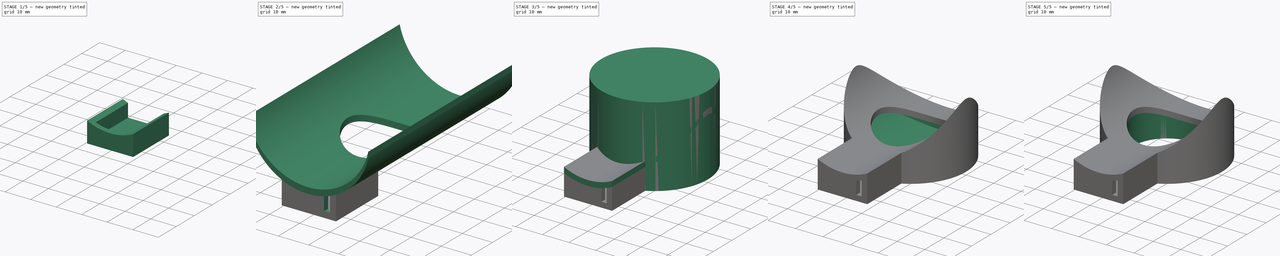
[diagram: build sequence overview — one tinted view per stage of 5, left to right]
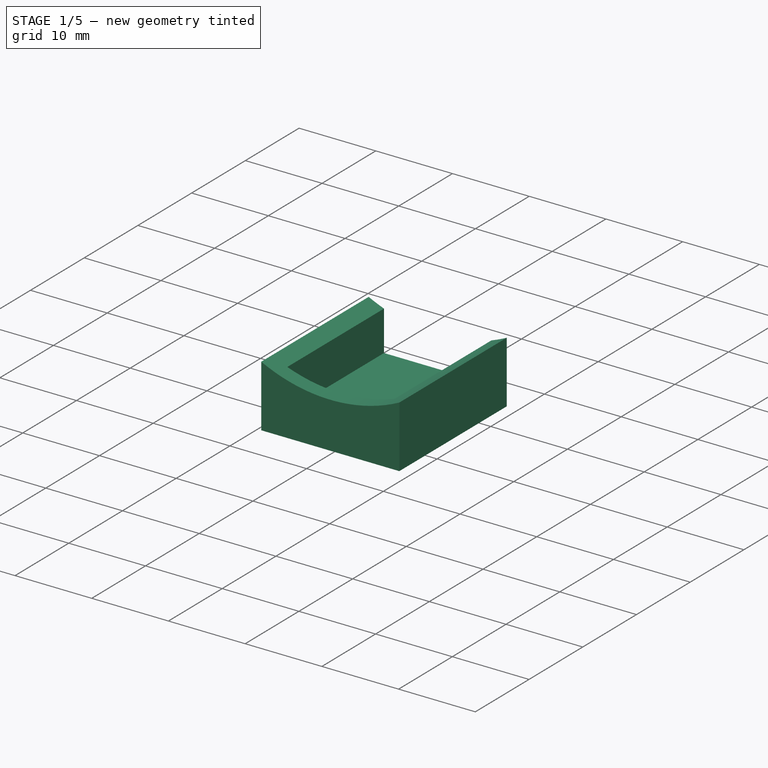
[diagram: stage 1 of 5 — iso view after this stage's code; geometry added in this stage tinted green]
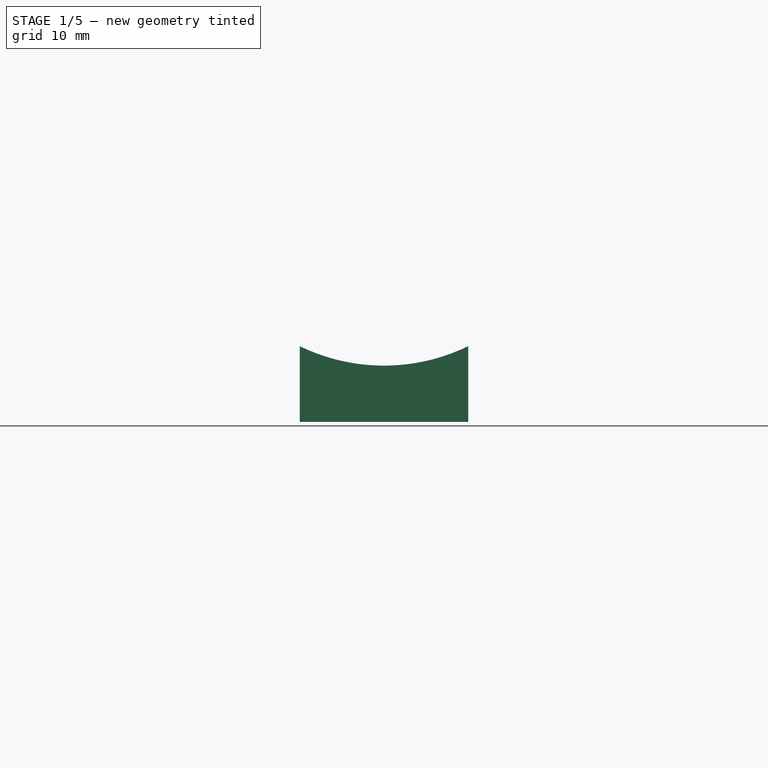
[diagram: stage 1 of 5 — front view after this stage's code; geometry added in this stage tinted green]
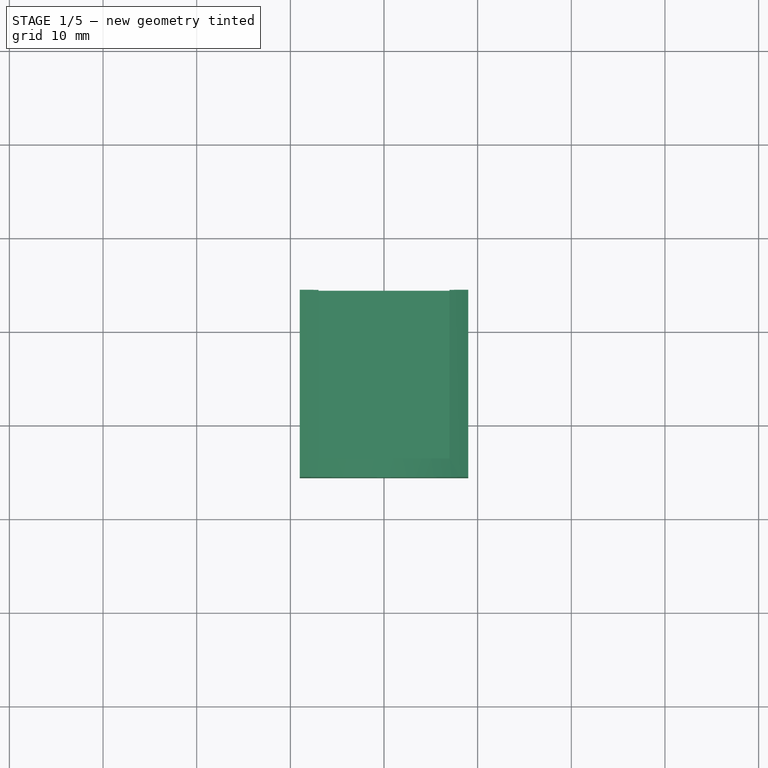
[diagram: stage 1 of 5 — top view after this stage's code; geometry added in this stage tinted green]
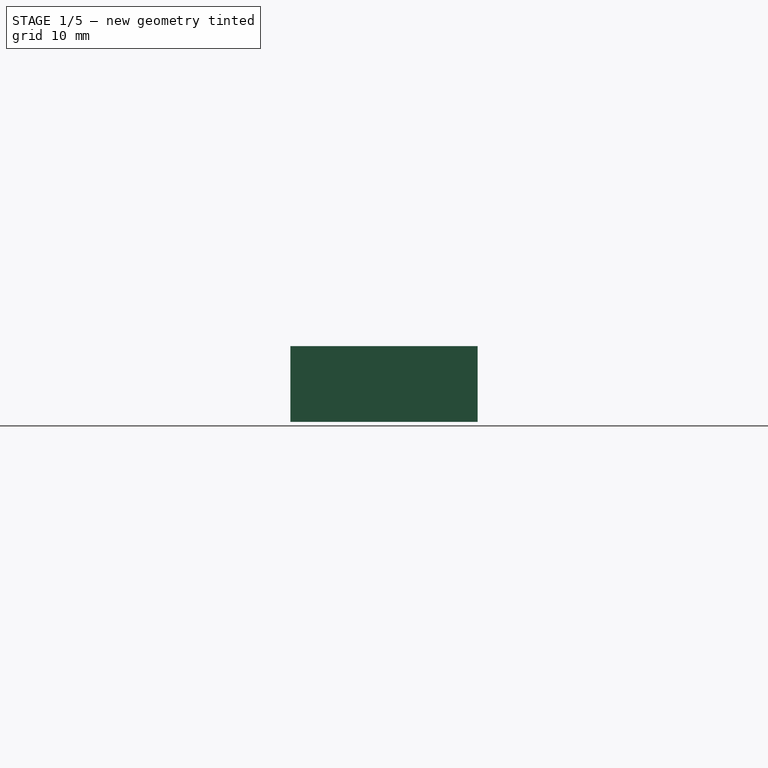
[diagram: stage 1 of 5 — right view after this stage's code; geometry added in this stage tinted green]
FCSTD DOCUMENT  (FreeCAD 0.21R33771 (Git))
Label: bruker7t_fus_single_coil_wrap_id24_both
License: All rights reserved
LicenseURL: http://en.wikipedia.org/wiki/All_rights_reserved
objects: Sketcher::SketchObject×22, PartDesign::Pocket×16, PartDesign::Pad×6, PartDesign::Body×5
note: 71 computed .brp shape members not serialized (recipe doc carries the construction recipe); baked Part::Feature solids carry a one-line shape summary decoded from their .brp

FEATURE [PartDesign::Body] Body001  label="base_cylinder_intermediate"
  Group = -> [Sketch003,Pad001,Sketch004,Pocket002,Sketch008,Pocket005]
  Origin = -> Origin001
  Tip = -> Pocket005
FEATURE [Sketcher::SketchObject] Sketch009
  FullyConstrained = true
  MapMode = 5
  Support = -> [XY_Plane003]
  sketch-geometry (4):
    g0: LineSegment StartX=-9 StartY=-15.5885 StartZ=0 EndX=9 EndY=-15.5885 EndZ=0
    g1: LineSegment StartX=9 StartY=-15.5885 StartZ=0 EndX=9 EndY=-35.5885 EndZ=0
    g2: LineSegment StartX=9 StartY=-35.5885 StartZ=0 EndX=-9 EndY=-35.5885 EndZ=0
    g3: LineSegment StartX=-9 StartY=-35.5885 StartZ=0 EndX=-9 EndY=-15.5885 EndZ=0
  constraints (11):
    c: Coincident(g0,g1)
    c: Coincident(g1,g2)
    c: Coincident(g2,g3)
    c: Coincident(g3,g0)
    c: Horizontal(g2)
    c: Vertical(g1)
    c: Vertical(g3)
    c: DistanceY(g1,g1) = 20
    c: DistanceX(g0,g0) = 18
    c: Symmetric(g0,g0,g-2)
    c: Distance(g-1,g0) = 18
FEATURE [PartDesign::Pad] Pad003
  Direction = (0,0,1)
  Length = 9
  Length2 = 10
  Profile = -> Sketch009
  ReferenceAxis = -> Sketch009 [N_Axis]
  Refine = true
  Type = 0
FEATURE [Sketcher::SketchObject] Sketch010
  AttachmentOffset = pos=(0,0,2) rot=(0,0,1;0rad)
  FullyConstrained = true
  MapMode = 5
  Placement = pos=(0,0,2) rot=(0,0,1;0rad)
  Support = -> [XY_Plane003]
  sketch-geometry (4):
    g0: LineSegment StartX=-7 StartY=-16.5831 StartZ=0 EndX=7 EndY=-16.5831 EndZ=0
    g1: LineSegment StartX=7 StartY=-16.5831 StartZ=0 EndX=7 EndY=-33.5831 EndZ=0
    g2: LineSegment StartX=7 StartY=-33.5831 StartZ=0 EndX=-7 EndY=-33.5831 EndZ=0
    g3: LineSegment StartX=-7 StartY=-33.5831 StartZ=0 EndX=-7 EndY=-16.5831 EndZ=0
  constraints (11):
    c: Coincident(g0,g1)
    c: Coincident(g1,g2)
    c: Coincident(g2,g3)
    c: Coincident(g3,g0)
    c: Horizontal(g0)
    c: Vertical(g1)
    c: Vertical(g3)
    c: Symmetric(g1,g2,g-2)
    c: DistanceX(g0,g0) = 14
    c: DistanceY(g1,g1) = 17
    c: Distance(g-1,g0) = 18
FEATURE [PartDesign::Pocket] Pocket006
  BaseFeature = -> Pad003
  Direction = (0,0,-1)
  Length = 7
  Length2 = 5
  Profile = -> Sketch010
  ReferenceAxis = -> Sketch010 [N_Axis]
  Refine = true
  Reversed = true
  Type = 0
FEATURE [Sketcher::SketchObject] Sketch011
  AttachmentOffset = pos=(0,0,15) rot=(0,0,1;0rad)
  FullyConstrained = true
  MapMode = 5
  Placement = pos=(0,-15,-3.3e-15) rot=(1,0,0;1.5708rad)
  Support = -> [XZ_Plane003]
  sketch-geometry (4):
    g0: LineSegment StartX=-20 StartY=22 StartZ=0 EndX=-20 EndY=32 EndZ=0
    g1: LineSegment StartX=-20 StartY=32 StartZ=0 EndX=20 EndY=32 EndZ=0
    g2: LineSegment StartX=20 StartY=32 StartZ=0 EndX=20 EndY=22 EndZ=0
    g3: ArcOfCircle CenterX=-7.93e-14 CenterY=26.5 CenterZ=0 NormalX=0 NormalY=0 NormalZ=1 AngleXU=0 Radius=20.5 StartAngle=3.36291 EndAngle=6.06187
  constraints (12):
    c: Vertical(g0)
    c: Coincident(g0,g1)
    c: Coincident(g1,g2)
    c: Vertical(g2)
    c: DistanceY(g-1,g1) = 32
    c: Symmetric(g1,g0,g-2)
    c: DistanceX(g1,g1) = 40
    c: Coincident(g3,g0)
    c: Coincident(g3,g2)
    c: Equal(g2,g0)
    c: DistanceY(g-1,g2) = 22
    c: Radius(g3) = 20.5
FEATURE [PartDesign::Pocket] Pocket007
  BaseFeature = -> Pocket006
  Direction = (0,1,-2e-16)
  Length = 21
  Length2 = 5
  Profile = -> Sketch011
  ReferenceAxis = -> Sketch011 [N_Axis]
  Refine = true
  Reversed = true
  Type = 0
FEATURE [Sketcher::SketchObject] Sketch012
  AttachmentOffset = pos=(0,0,33) rot=(0,0,1;0rad)
  FullyConstrained = false
  MapMode = 5
  Placement = pos=(0,-33,-7.3e-15) rot=(1,0,0;1.5708rad)
  Support = -> [XZ_Plane003]
  sketch-geometry (4):
    g0: LineSegment StartX=-7 StartY=9.42455 StartZ=0 EndX=7 EndY=9.42455 EndZ=0
    g1: LineSegment StartX=7 StartY=9.42455 StartZ=0 EndX=7 EndY=2 EndZ=0
    g2: LineSegment StartX=7 StartY=2 StartZ=0 EndX=-7 EndY=2 EndZ=0
    g3: LineSegment StartX=-7 StartY=2 StartZ=0 EndX=-7 EndY=9.42455 EndZ=0
  constraints (10):
    c: Coincident(g0,g1)
    c: Coincident(g1,g2)
    c: Coincident(g2,g3)
    c: Coincident(g3,g0)
    c: Horizontal(g2)
    c: Vertical(g1)
    c: Vertical(g3)
    c: Symmetric(g0,g0,g-2)
    c: DistanceX(g0,g0) = 14
    c: DistanceY(g-1,g1) = 2
FEATURE [PartDesign::Pocket] Pocket008
  BaseFeature = -> Pocket007
  Direction = (0,1,-2e-16)
  Length = 25
  Length2 = 5
  Profile = -> Sketch012
  ReferenceAxis = -> Sketch012 [N_Axis]
  Refine = true
  Type = 0
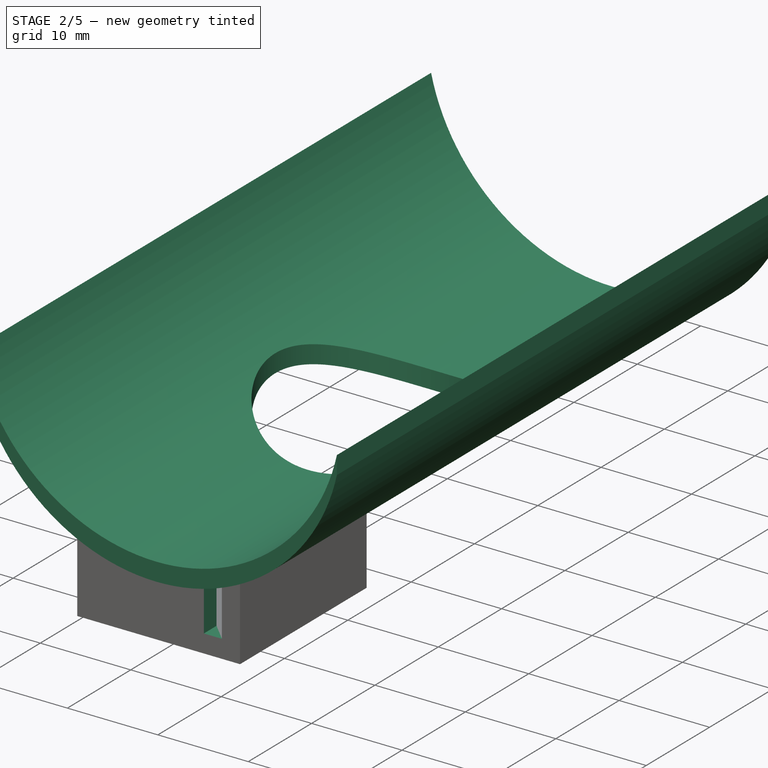
[diagram: stage 2 of 5 — iso view after this stage's code; geometry added in this stage tinted green]
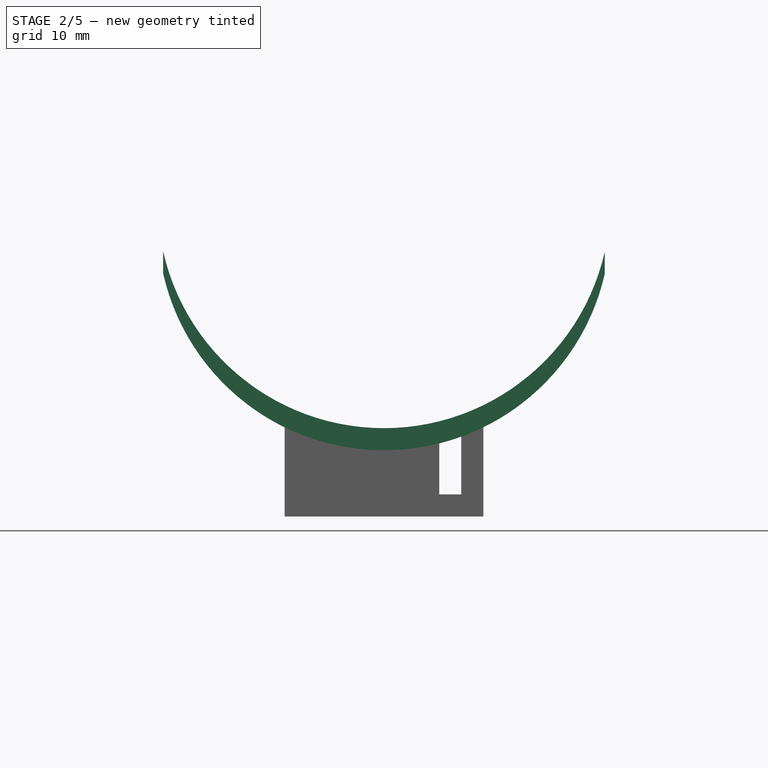
[diagram: stage 2 of 5 — front view after this stage's code; geometry added in this stage tinted green]
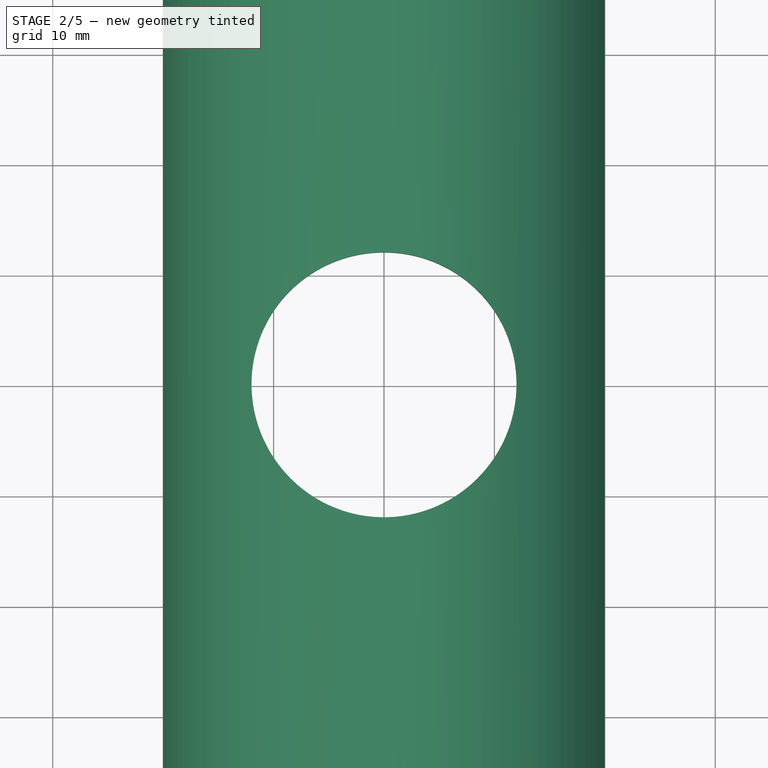
[diagram: stage 2 of 5 — top view after this stage's code; geometry added in this stage tinted green]
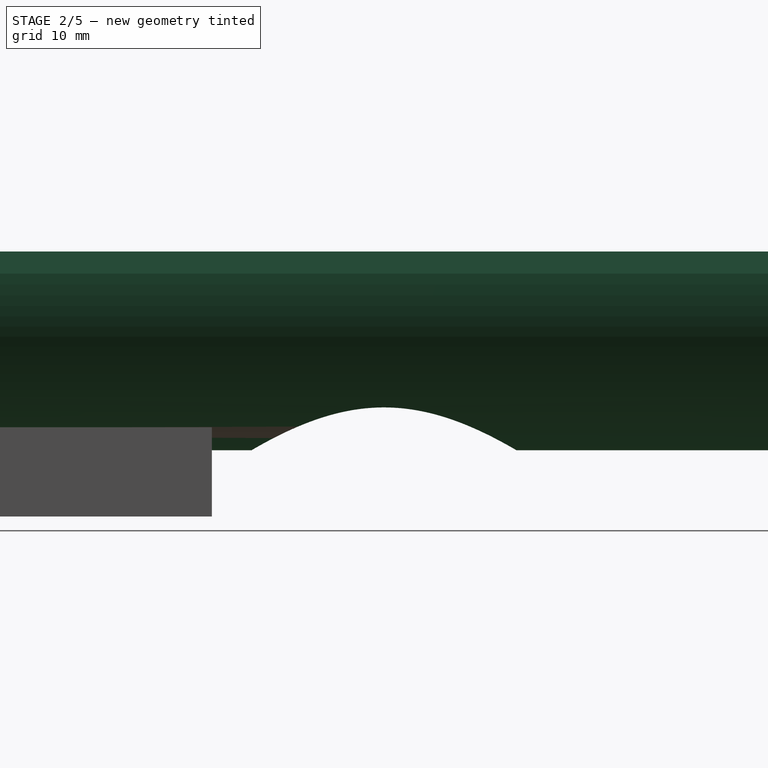
[diagram: stage 2 of 5 — right view after this stage's code; geometry added in this stage tinted green]
FEATURE [Sketcher::SketchObject] Sketch013
  AttachmentOffset = pos=(0,0,9) rot=(0,0,1;0rad)
  FullyConstrained = true
  MapMode = 5
  Placement = pos=(0,0,9) rot=(0,0,1;0rad)
  Support = -> [XY_Plane003]
  sketch-geometry (1):
    g0: Circle CenterX=0 CenterY=0 CenterZ=0 NormalX=0 NormalY=0 NormalZ=1 AngleXU=0 Radius=18
  constraints (2):
    c: Coincident(g0,g-1)
    c: Radius(g0) = 18
FEATURE [PartDesign::Pocket] Pocket009
  BaseFeature = -> Pocket008
  Direction = (0,0,-1)
  Length = 7
  Length2 = 5
  Profile = -> Sketch013
  ReferenceAxis = -> Sketch013 [N_Axis]
  Refine = true
  Type = 0
FEATURE [PartDesign::Body] Body  label="base_cylinder_external"
  Group = -> [Sketch,Pad,Sketch001,Pocket,Sketch002,Pocket001,Sketch014,Pocket010]
  Origin = -> Origin
  Tip = -> Pocket010
FEATURE [Sketcher::SketchObject] Sketch015
  FullyConstrained = true
  MapMode = 5
  Placement = pos=(0,0,0) rot=(1,0,0;1.5708rad)
  Support = -> [XZ_Plane004]
  sketch-geometry (4):
    g0: LineSegment StartX=-20 StartY=22 StartZ=0 EndX=-20 EndY=32 EndZ=0
    g1: LineSegment StartX=-20 StartY=32 StartZ=0 EndX=20 EndY=32 EndZ=0
    g2: LineSegment StartX=20 StartY=32 StartZ=0 EndX=20 EndY=22 EndZ=0
    g3: ArcOfCircle CenterX=-7.95e-14 CenterY=26.5 CenterZ=0 NormalX=0 NormalY=0 NormalZ=1 AngleXU=0 Radius=20.5 StartAngle=3.36291 EndAngle=6.06187
  constraints (12):
    c: Vertical(g0)
    c: Coincident(g0,g1)
    c: Coincident(g1,g2)
    c: Vertical(g2)
    c: DistanceY(g-1,g1) = 32
    c: Symmetric(g1,g0,g-2)
    c: DistanceX(g1,g1) = 40
    c: Coincident(g3,g0)
    c: Coincident(g3,g2)
    c: Equal(g0,g2)
    c: DistanceY(g-1,g2) = 22
    c: Radius(g3) = 20.5
FEATURE [PartDesign::Pad] Pad004
  Direction = (0,-1,2e-16)
  Length = 72
  Length2 = 10
  Midplane = true
  Placement = pos=(0,0,0) rot=(1,0,0;1.5708rad)
  Profile = -> Sketch015
  ReferenceAxis = -> Sketch015 [N_Axis]
  Refine = true
  Type = 0
FEATURE [Sketcher::SketchObject] Sketch016
  FullyConstrained = true
  MapMode = 5
  Placement = pos=(0,0,0) rot=(1,0,0;1.5708rad)
  Support = -> [XZ_Plane004]
  sketch-geometry (4):
    g0: LineSegment StartX=-20 StartY=24 StartZ=0 EndX=-20 EndY=34 EndZ=0
    g1: LineSegment StartX=-20 StartY=34 StartZ=0 EndX=20 EndY=34 EndZ=0
    g2: LineSegment StartX=20 StartY=34 StartZ=0 EndX=20 EndY=24 EndZ=0
    g3: ArcOfCircle CenterX=1.067e-13 CenterY=28.5 CenterZ=0 NormalX=0 NormalY=0 NormalZ=1 AngleXU=0 Radius=20.5 StartAngle=3.36291 EndAngle=6.06187
  constraints (12):
    c: Vertical(g0)
    c: Coincident(g0,g1)
    c: Coincident(g1,g2)
    c: Vertical(g2)
    c: DistanceY(g-1,g1) = 34
    c: Symmetric(g1,g0,g-2)
    c: DistanceX(g1,g1) = 40
    c: Coincident(g3,g0)
    c: Coincident(g3,g2)
    c: Equal(g0,g2)
    c: DistanceY(g-1,g2) = 24
    c: Radius(g3) = 20.5
FEATURE [PartDesign::Pocket] Pocket011
  BaseFeature = -> Pad004
  Direction = (0,1,-2e-16)
  Length = 72
  Length2 = 5
  Midplane = true
  Placement = pos=(0,0,0) rot=(1,0,0;1.5708rad)
  Profile = -> Sketch016
  ReferenceAxis = -> Sketch016 [N_Axis]
  Refine = true
  Type = 0
FEATURE [Sketcher::SketchObject] Sketch017
  FullyConstrained = true
  MapMode = 5
  Support = -> [XY_Plane004]
  sketch-geometry (1):
    g0: Circle CenterX=0 CenterY=0 CenterZ=0 NormalX=0 NormalY=0 NormalZ=1 AngleXU=0 Radius=12
  constraints (2):
    c: Coincident(g0,g-1)
    c: Radius(g0) = 12
FEATURE [PartDesign::Pocket] Pocket012
  BaseFeature = -> Pocket011
  Direction = (0,0,-1)
  Length = 5
  Length2 = 5
  Placement = pos=(0,0,0) rot=(1,0,0;1.5708rad)
  Profile = -> Sketch017
  ReferenceAxis = -> Sketch017 [N_Axis]
  Refine = true
  Reversed = true
  Type = 1
FEATURE [PartDesign::Body] Body004  label="top"
  Group = -> [Sketch015,Pad004,Sketch016,Pocket011,Sketch017,Pocket012,Sketch018,Pocket013,Sketch019,Pocket014,Sketch020,Pad005]
  Origin = -> Origin004
  Tip = -> Pad005
FEATURE [Sketcher::SketchObject] Sketch021
  AttachmentOffset = pos=(0,0,37) rot=(0,0,1;0rad)
  FullyConstrained = true
  MapMode = 5
  Placement = pos=(0,-37,-8.2e-15) rot=(1,0,0;1.5708rad)
  Support = -> [XZ_Plane003]
  sketch-geometry (4):
    g0: LineSegment StartX=5 StartY=10 StartZ=0 EndX=7 EndY=10 EndZ=0
    g1: LineSegment StartX=7 StartY=10 StartZ=0 EndX=7 EndY=2 EndZ=0
    g2: LineSegment StartX=7 StartY=2 StartZ=0 EndX=5 EndY=2 EndZ=0
    g3: LineSegment StartX=5 StartY=2 StartZ=0 EndX=5 EndY=10 EndZ=0
  constraints (12):
    c: Coincident(g0,g1)
    c: Coincident(g1,g2)
    c: Coincident(g2,g3)
    c: Coincident(g3,g0)
    c: Horizontal(g0)
    c: Horizontal(g2)
    c: Vertical(g1)
    c: Vertical(g3)
    c: DistanceX(g2,g2) = 2
    c: DistanceY(g-1,g2) = 2
    c: DistanceX(g-1,g1) = 7
    c: DistanceY(g1,g1) = 8
FEATURE [PartDesign::Pocket] Pocket015
  BaseFeature = -> Pocket009
  Direction = (0,1,-2e-16)
  Length = 5
  Length2 = 5
  Profile = -> Sketch021
  ReferenceAxis = -> Sketch021 [N_Axis]
  Refine = true
  Type = 0
FEATURE [PartDesign::Body] Body003  label="base_box"
  Group = -> [Sketch009,Pad003,Sketch010,Pocket006,Sketch011,Pocket007,Sketch012,Pocket008,Sketch013,Pocket009,Sketch021,Pocket015]
  Origin = -> Origin003
  Tip = -> Pocket015
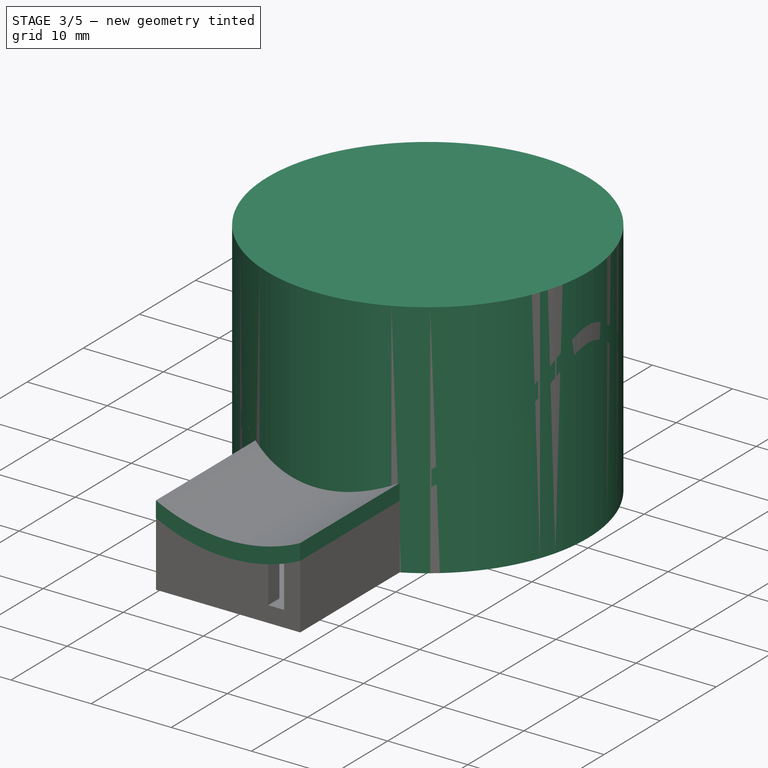
[diagram: stage 3 of 5 — iso view after this stage's code; geometry added in this stage tinted green]
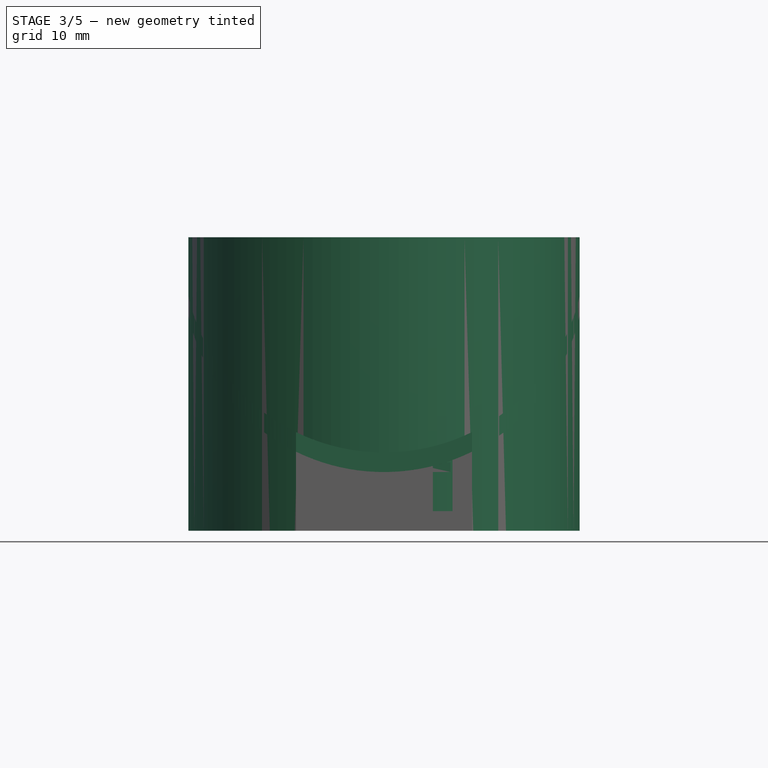
[diagram: stage 3 of 5 — front view after this stage's code; geometry added in this stage tinted green]
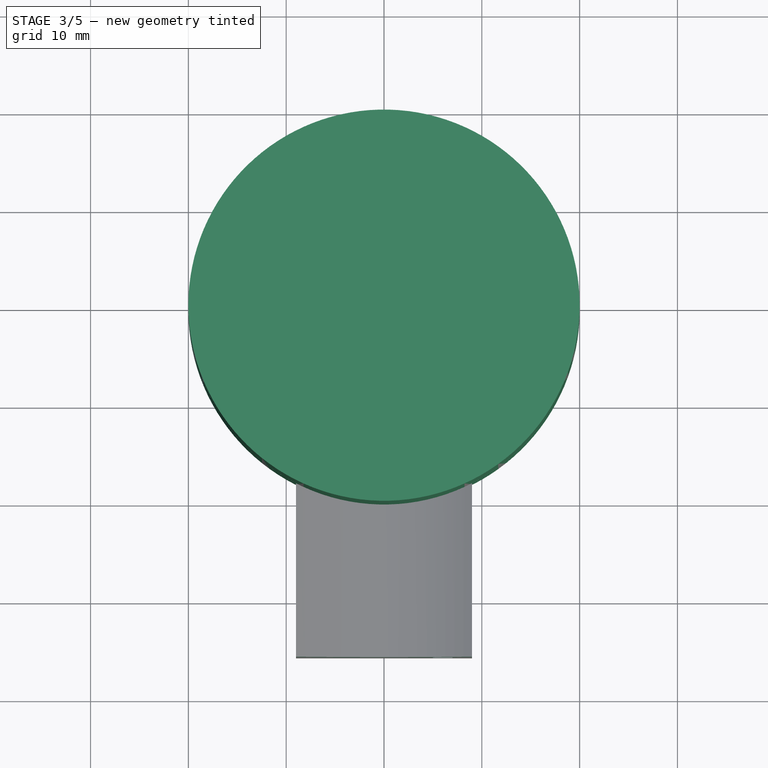
[diagram: stage 3 of 5 — top view after this stage's code; geometry added in this stage tinted green]
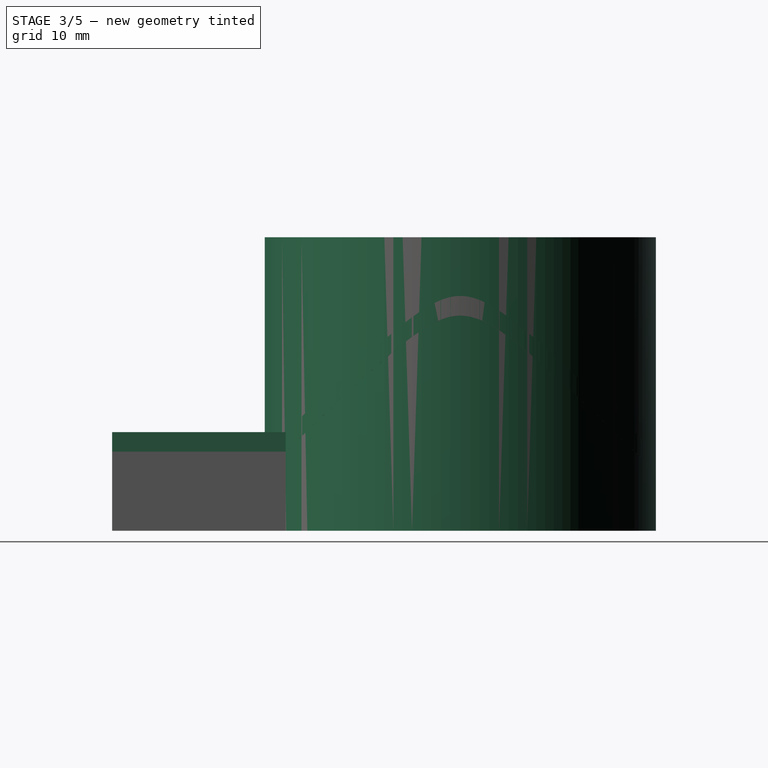
[diagram: stage 3 of 5 — right view after this stage's code; geometry added in this stage tinted green]
FEATURE [Sketcher::SketchObject] Sketch
  FullyConstrained = true
  MapMode = 5
  Support = -> [XY_Plane]
  sketch-geometry (1):
    g0: Circle CenterX=0 CenterY=0 CenterZ=0 NormalX=0 NormalY=0 NormalZ=1 AngleXU=0 Radius=20
  constraints (2):
    c: Coincident(g0,g-1)
    c: Radius(g0) = 20
FEATURE [PartDesign::Pad] Pad
  Direction = (0,0,1)
  Length = 30
  Length2 = 10
  Profile = -> Sketch
  ReferenceAxis = -> Sketch [N_Axis]
  Refine = true
  Type = 0
FEATURE [Sketcher::SketchObject] Sketch018
  FullyConstrained = false
  MapMode = 5
  Support = -> [XY_Plane004]
  sketch-geometry (8):
    g0: LineSegment StartX=9 StartY=-38.9552 StartZ=0 EndX=9 EndY=-17.8606 EndZ=0
    g1: LineSegment StartX=-9 StartY=-38.9552 StartZ=0 EndX=-9 EndY=-17.8606 EndZ=0
    g2: ArcOfCircle CenterX=0 CenterY=0 CenterZ=0 NormalX=0 NormalY=0 NormalZ=1 AngleXU=0 Radius=20 StartAngle=5.17915 EndAngle=10.5288
    g3: LineSegment StartX=-9 StartY=-38.9552 StartZ=0 EndX=-27 EndY=-38.9552 EndZ=0
    g4: LineSegment StartX=-27 StartY=-38.9552 StartZ=0 EndX=-27 EndY=41.0448 EndZ=0
    g5: LineSegment StartX=-27 StartY=41.0448 StartZ=0 EndX=27 EndY=41.0448 EndZ=0
    g6: LineSegment StartX=27 StartY=41.0448 StartZ=0 EndX=27 EndY=-38.9552 EndZ=0
    g7: LineSegment StartX=27 StartY=-38.9552 StartZ=0 EndX=9 EndY=-38.9552 EndZ=0
  constraints (22):
    c: Vertical(g0)
    c: Horizontal(g3)
    c: Coincident(g3,g4)
    c: Vertical(g4)
    c: Coincident(g4,g5)
    c: Horizontal(g5)
    c: Coincident(g5,g6)
    c: Vertical(g6)
    c: Coincident(g6,g7)
    c: Horizontal(g7)
    c: Coincident(g0,g7)
    c: Coincident(g1,g3)
    c: Vertical(g1)
    c: Coincident(g2,g-1)
    c: Coincident(g0,g2)
    c: Coincident(g2,g1)
    c: Radius(g2) = 20
    c: Symmetric(g6,g3,g-2)
    c: DistanceX(g1,g0) = 18
    c: Horizontal(g0,g1)
    c: DistanceX(g7,g7) = 18
    c: DistanceY(g6,g6) = 80
FEATURE [PartDesign::Pocket] Pocket013
  BaseFeature = -> Pocket012
  Direction = (0,0,-1)
  Length = 25
  Length2 = 5
  Placement = pos=(0,0,0) rot=(1,0,0;1.5708rad)
  Profile = -> Sketch018
  ReferenceAxis = -> Sketch018 [N_Axis]
  Refine = true
  Reversed = true
  Type = 0
FEATURE [Sketcher::SketchObject] Sketch019
  FullyConstrained = true
  MapMode = 5
  Support = -> [XY_Plane004]
  sketch-geometry (4):
    g0: LineSegment StartX=-10 StartY=-35.6 StartZ=0 EndX=10 EndY=-35.6 EndZ=0
    g1: LineSegment StartX=10 StartY=-35.6 StartZ=0 EndX=10 EndY=-40.6 EndZ=0
    g2: LineSegment StartX=10 StartY=-40.6 StartZ=0 EndX=-10 EndY=-40.6 EndZ=0
    g3: LineSegment StartX=-10 StartY=-40.6 StartZ=0 EndX=-10 EndY=-35.6 EndZ=0
  constraints (11):
    c: Coincident(g0,g1)
    c: Coincident(g1,g2)
    c: Coincident(g2,g3)
    c: Coincident(g3,g0)
    c: Horizontal(g2)
    c: Vertical(g1)
    c: Vertical(g3)
    c: Symmetric(g0,g0,g-2)
    c: DistanceX(g2,g2) = 20
    c: DistanceY(g0,g-1) = 35.6
    c: DistanceY(g3,g3) = 5
FEATURE [PartDesign::Pocket] Pocket014
  BaseFeature = -> Pocket013
  Direction = (0,0,-1)
  Length = 15
  Length2 = 5
  Placement = pos=(0,0,0) rot=(1,0,0;1.5708rad)
  Profile = -> Sketch019
  ReferenceAxis = -> Sketch019 [N_Axis]
  Refine = true
  Reversed = true
  Type = 0
FEATURE [Sketcher::SketchObject] Sketch020
  AttachmentOffset = pos=(0,0,7) rot=(0,0,1;0rad)
  FullyConstrained = false
  MapMode = 5
  Placement = pos=(0,0,7) rot=(0,0,1;0rad)
  Support = -> [XY_Plane004]
  sketch-geometry (8):
    g0: LineSegment StartX=-6.8 StartY=-20.9757 StartZ=0 EndX=-6.8 EndY=-33.5 EndZ=0
    g1: LineSegment StartX=-6.8 StartY=-33.5 StartZ=0 EndX=6.8 EndY=-33.5 EndZ=0
    g2: LineSegment StartX=6.8 StartY=-33.5 StartZ=0 EndX=6.8 EndY=-20.9757 EndZ=0
    g3: LineSegment StartX=6.8 StartY=-20.9757 StartZ=0 EndX=5.8 EndY=-20.9757 EndZ=0
    g4: LineSegment StartX=5.8 StartY=-20.9757 StartZ=0 EndX=5.8 EndY=-32.5 EndZ=0
    g5: LineSegment StartX=5.8 StartY=-32.5 StartZ=0 EndX=-5.8 EndY=-32.5 EndZ=0
    g6: LineSegment StartX=-5.8 StartY=-32.5 StartZ=0 EndX=-5.8 EndY=-20.9757 EndZ=0
    g7: LineSegment StartX=-5.8 StartY=-20.9757 StartZ=0 EndX=-6.8 EndY=-20.9757 EndZ=0
  constraints (22):
    c: Vertical(g0)
    c: Coincident(g0,g1)
    c: Horizontal(g1)
    c: Coincident(g1,g2)
    c: Vertical(g2)
    c: Coincident(g2,g3)
    c: Coincident(g3,g4)
    c: Vertical(g4)
    c: Coincident(g4,g5)
    c: Horizontal(g5)
    c: Coincident(g5,g6)
    c: Vertical(g6)
    c: Coincident(g6,g7)
    c: Coincident(g7,g0)
    c: Horizontal(g3)
    c: Horizontal(g7)
    c: DistanceX(g7,g7) = 1
    c: DistanceX(g3,g3) = 1
    c: DistanceY(g0,g5) = 1
    c: Symmetric(g3,g6,g-2)
    c: DistanceX(g6,g-1) = 5.8
    c: DistanceY(g4,g-1) = 32.5
FEATURE [PartDesign::Pad] Pad005
  BaseFeature = -> Pocket014
  Direction = (0,0,1)
  Length = 1
  Length2 = 10
  Placement = pos=(0,0,0) rot=(1,0,0;1.5708rad)
  Profile = -> Sketch020
  ReferenceAxis = -> Sketch020 [N_Axis]
  Refine = true
  Reversed = true
  Type = 0
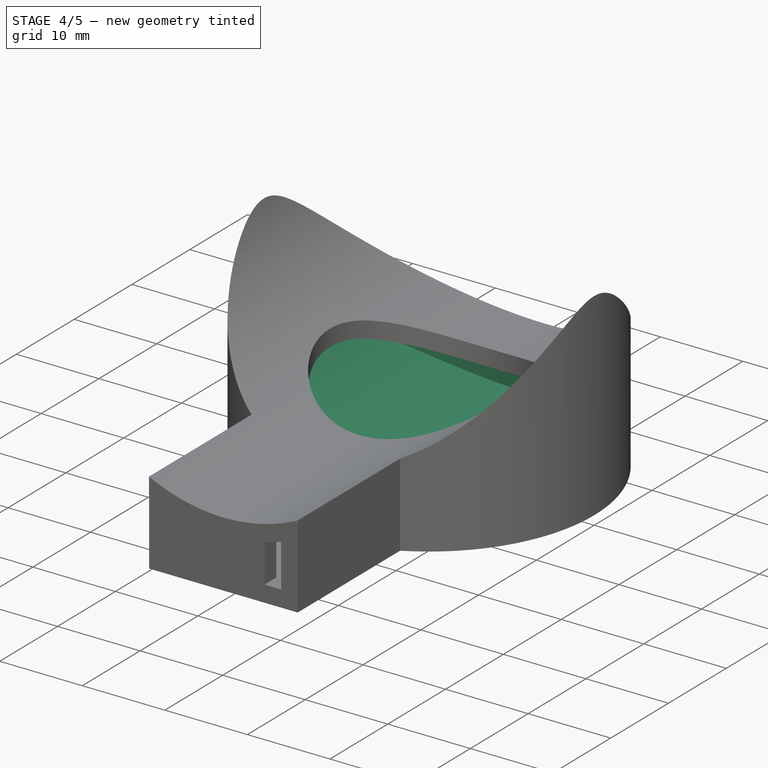
[diagram: stage 4 of 5 — iso view after this stage's code; geometry added in this stage tinted green]
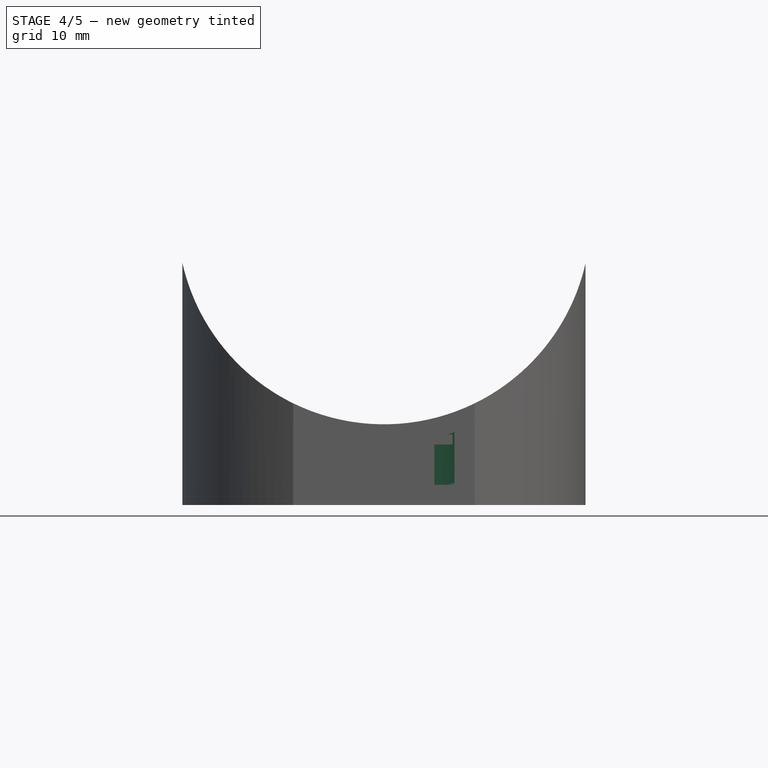
[diagram: stage 4 of 5 — front view after this stage's code; geometry added in this stage tinted green]
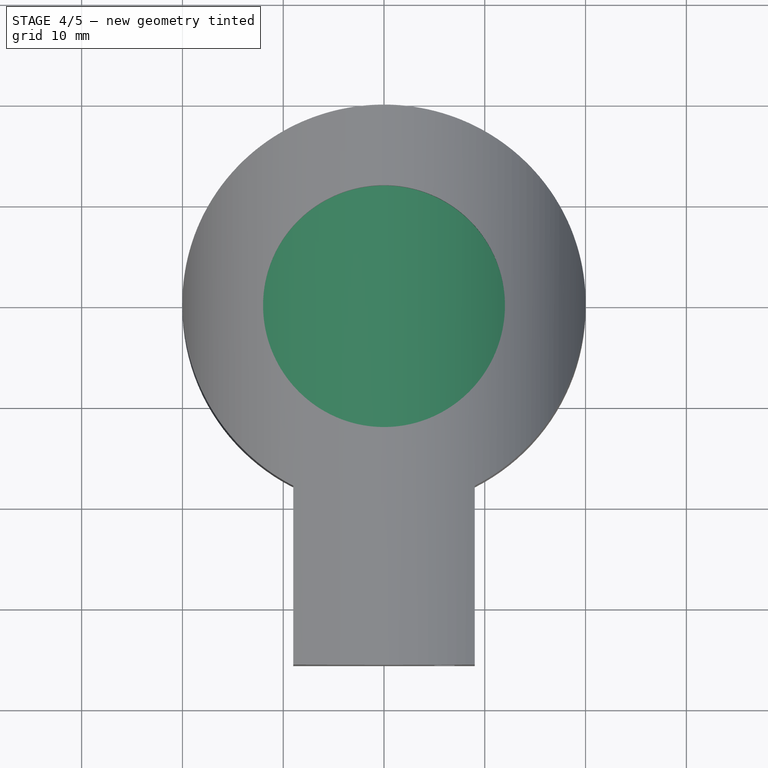
[diagram: stage 4 of 5 — top view after this stage's code; geometry added in this stage tinted green]
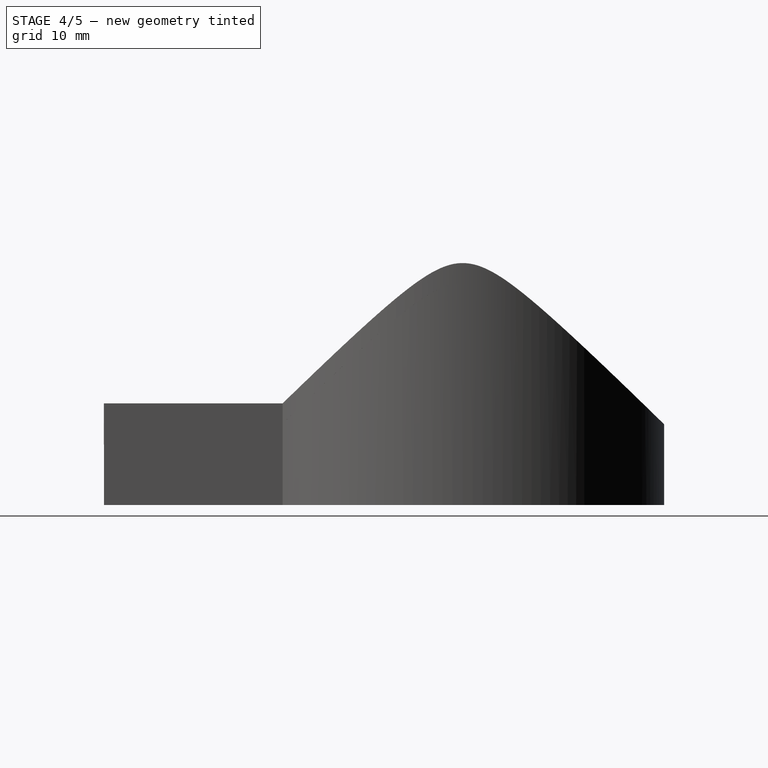
[diagram: stage 4 of 5 — right view after this stage's code; geometry added in this stage tinted green]
FEATURE [Sketcher::SketchObject] Sketch001
  FullyConstrained = true
  MapMode = 5
  Support = -> [XY_Plane]
  sketch-geometry (1):
    g0: Circle CenterX=0 CenterY=0 CenterZ=0 NormalX=0 NormalY=0 NormalZ=1 AngleXU=0 Radius=18
  constraints (2):
    c: Coincident(g0,g-1)
    c: Radius(g0) = 18
FEATURE [PartDesign::Pocket] Pocket
  BaseFeature = -> Pad
  Direction = (0,0,-1)
  Length = 40
  Length2 = 5
  Profile = -> Sketch001
  ReferenceAxis = -> Sketch001 [N_Axis]
  Refine = true
  Reversed = true
  Type = 0
FEATURE [Sketcher::SketchObject] Sketch002
  FullyConstrained = true
  MapMode = 5
  Placement = pos=(0,0,0) rot=(1,0,0;1.5708rad)
  Support = -> [XZ_Plane]
  sketch-geometry (4):
    g0: LineSegment StartX=-20 StartY=22 StartZ=0 EndX=-20 EndY=32 EndZ=0
    g1: LineSegment StartX=-20 StartY=32 StartZ=0 EndX=20 EndY=32 EndZ=0
    g2: LineSegment StartX=20 StartY=32 StartZ=0 EndX=20 EndY=22 EndZ=0
    g3: ArcOfCircle CenterX=-7.95e-14 CenterY=26.5 CenterZ=0 NormalX=0 NormalY=0 NormalZ=1 AngleXU=0 Radius=20.5 StartAngle=3.36291 EndAngle=6.06187
  constraints (12):
    c: Vertical(g0)
    c: Coincident(g0,g1)
    c: Coincident(g1,g2)
    c: Vertical(g2)
    c: DistanceY(g-1,g1) = 32
    c: Symmetric(g1,g0,g-2)
    c: DistanceX(g1,g1) = 40
    c: Coincident(g3,g0)
    c: Coincident(g3,g2)
    c: Equal(g0,g2)
    c: DistanceY(g-1,g2) = 22
    c: Radius(g3) = 20.5
FEATURE [PartDesign::Pocket] Pocket001
  BaseFeature = -> Pocket
  Direction = (0,1,2e-16)
  Length = 5
  Length2 = 5
  Midplane = true
  Profile = -> Sketch002
  ReferenceAxis = -> Sketch002 [N_Axis]
  Refine = true
  Type = 1
FEATURE [Sketcher::SketchObject] Sketch003
  FullyConstrained = true
  MapMode = 5
  Support = -> [XY_Plane001]
  sketch-geometry (1):
    g0: Circle CenterX=0 CenterY=0 CenterZ=0 NormalX=0 NormalY=0 NormalZ=1 AngleXU=0 Radius=18
  constraints (2):
    c: Coincident(g0,g-1)
    c: Radius(g0) = 18
FEATURE [PartDesign::Pad] Pad001
  Direction = (0,0,1)
  Length = 30
  Length2 = 10
  Profile = -> Sketch003
  ReferenceAxis = -> Sketch003 [N_Axis]
  Refine = true
  Type = 0
FEATURE [Sketcher::SketchObject] Sketch004
  FullyConstrained = true
  MapMode = 5
  Placement = pos=(0,0,0) rot=(1,0,0;1.5708rad)
  Support = -> [XZ_Plane001]
  sketch-geometry (4):
    g0: LineSegment StartX=-20 StartY=17 StartZ=0 EndX=-20 EndY=32 EndZ=0
    g1: LineSegment StartX=-20 StartY=32 StartZ=0 EndX=20 EndY=32 EndZ=0
    g2: LineSegment StartX=20 StartY=32 StartZ=0 EndX=20 EndY=17 EndZ=0
    g3: ArcOfCircle CenterX=1.6e-15 CenterY=21.5 CenterZ=0 NormalX=0 NormalY=0 NormalZ=1 AngleXU=0 Radius=20.5 StartAngle=3.36291 EndAngle=6.06187
  constraints (12):
    c: Vertical(g0)
    c: Coincident(g0,g1)
    c: Coincident(g1,g2)
    c: Vertical(g2)
    c: DistanceY(g-1,g1) = 32
    c: Symmetric(g1,g0,g-2)
    c: DistanceX(g1,g1) = 40
    c: Coincident(g3,g0)
    c: Coincident(g3,g2)
    c: Equal(g2,g0)
    c: DistanceY(g-1,g2) = 17
    c: Radius(g3) = 20.5
FEATURE [PartDesign::Pocket] Pocket002
  BaseFeature = -> Pad001
  Direction = (0,1,2e-16)
  Length = 5
  Length2 = 5
  Midplane = true
  Profile = -> Sketch004
  ReferenceAxis = -> Sketch004 [N_Axis]
  Refine = true
  Type = 1
FEATURE [Sketcher::SketchObject] Sketch014
  AttachmentOffset = pos=(0,0,22) rot=(0,0,1;0rad)
  FullyConstrained = false
  MapMode = 5
  Placement = pos=(0,-22,-4.9e-15) rot=(1,0,0;1.5708rad)
  Support = -> [XZ_Plane]
  sketch-geometry (4):
    g0: LineSegment StartX=-7 StartY=9.56952 StartZ=0 EndX=7 EndY=9.56952 EndZ=0
    g1: LineSegment StartX=7 StartY=9.56952 StartZ=0 EndX=7 EndY=2 EndZ=0
    g2: LineSegment StartX=7 StartY=2 StartZ=0 EndX=-7 EndY=2 EndZ=0
    g3: LineSegment StartX=-7 StartY=2 StartZ=0 EndX=-7 EndY=9.56952 EndZ=0
  constraints (10):
    c: Coincident(g0,g1)
    c: Coincident(g1,g2)
    c: Coincident(g2,g3)
    c: Coincident(g3,g0)
    c: Horizontal(g2)
    c: Vertical(g1)
    c: Vertical(g3)
    c: Symmetric(g0,g0,g-2)
    c: DistanceX(g0,g0) = 14
    c: DistanceY(g-1,g1) = 2
FEATURE [PartDesign::Pocket] Pocket010
  BaseFeature = -> Pocket001
  Direction = (0,1,2e-16)
  Length = 6
  Length2 = 5
  Profile = -> Sketch014
  ReferenceAxis = -> Sketch014 [N_Axis]
  Refine = true
  Type = 0
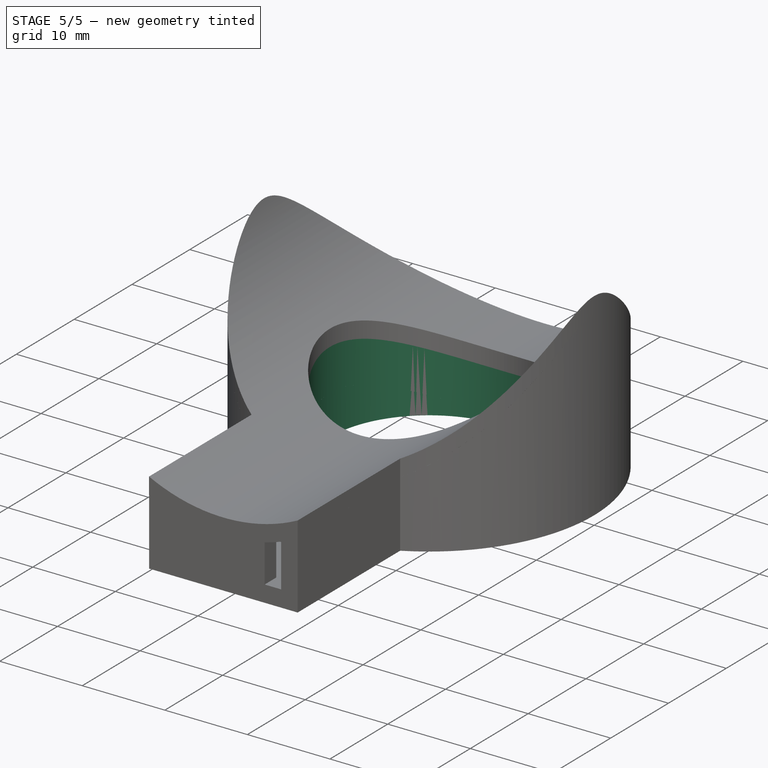
[diagram: stage 5 of 5 — iso view after this stage's code; geometry added in this stage tinted green]
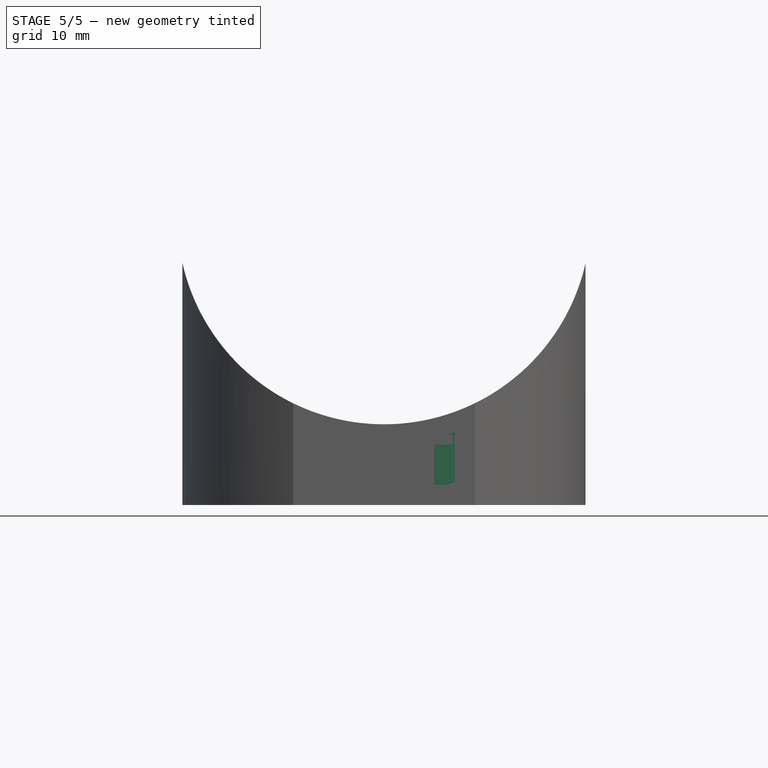
[diagram: stage 5 of 5 — front view after this stage's code; geometry added in this stage tinted green]
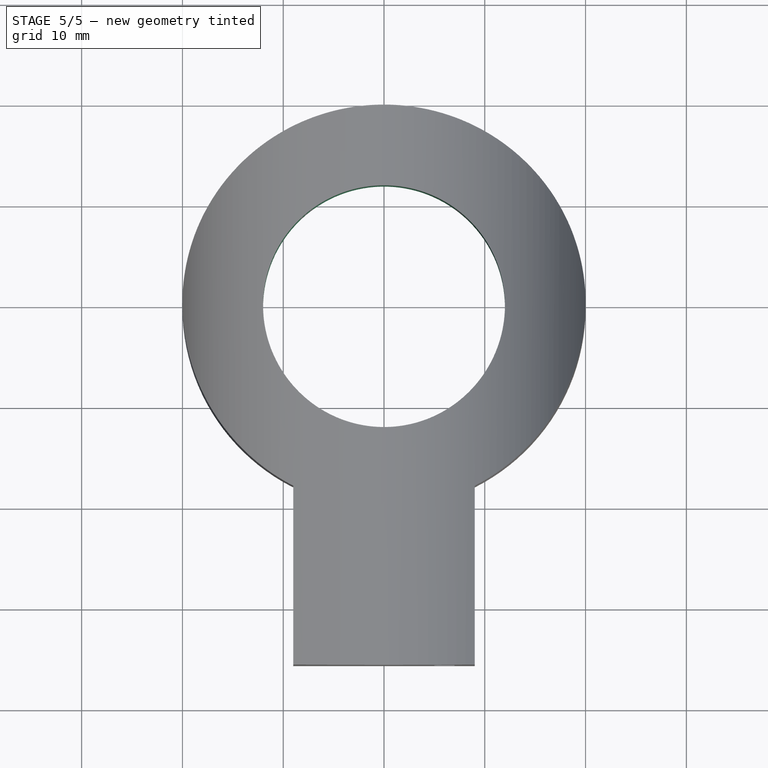
[diagram: stage 5 of 5 — top view after this stage's code; geometry added in this stage tinted green]
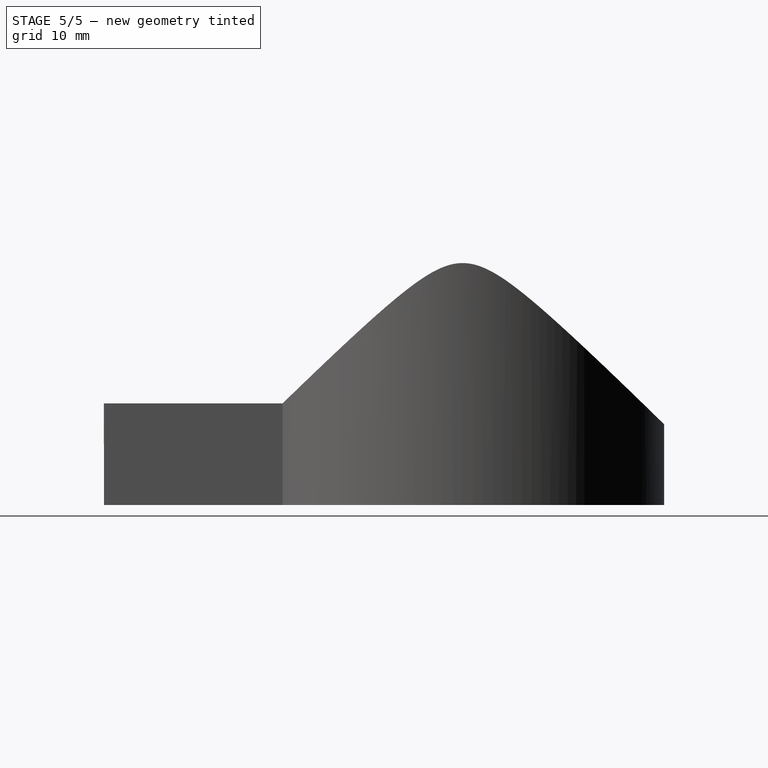
[diagram: stage 5 of 5 — right view after this stage's code; geometry added in this stage tinted green]
FEATURE [Sketcher::SketchObject] Sketch005
  FullyConstrained = true
  MapMode = 5
  Support = -> [XY_Plane002]
  sketch-geometry (1):
    g0: Circle CenterX=0 CenterY=0 CenterZ=0 NormalX=0 NormalY=0 NormalZ=1 AngleXU=0 Radius=13
  constraints (2):
    c: Coincident(g0,g-1)
    c: Radius(g0) = 13
FEATURE [PartDesign::Pad] Pad002
  Direction = (0,0,1)
  Length = 30
  Length2 = 10
  Profile = -> Sketch005
  ReferenceAxis = -> Sketch005 [N_Axis]
  Refine = true
  Type = 0
FEATURE [Sketcher::SketchObject] Sketch006
  FullyConstrained = true
  MapMode = 5
  Placement = pos=(0,0,0) rot=(1,0,0;1.5708rad)
  Support = -> [XZ_Plane002]
  sketch-geometry (4):
    g0: LineSegment StartX=-20 StartY=22 StartZ=0 EndX=-20 EndY=32 EndZ=0
    g1: LineSegment StartX=-20 StartY=32 StartZ=0 EndX=20 EndY=32 EndZ=0
    g2: LineSegment StartX=20 StartY=32 StartZ=0 EndX=20 EndY=22 EndZ=0
    g3: ArcOfCircle CenterX=-7.93e-14 CenterY=26.5 CenterZ=0 NormalX=0 NormalY=0 NormalZ=1 AngleXU=0 Radius=20.5 StartAngle=3.36291 EndAngle=6.06187
  constraints (12):
    c: Vertical(g0)
    c: Coincident(g0,g1)
    c: Coincident(g1,g2)
    c: Vertical(g2)
    c: DistanceY(g-1,g1) = 32
    c: Symmetric(g1,g0,g-2)
    c: DistanceX(g1,g1) = 40
    c: Coincident(g3,g0)
    c: Coincident(g3,g2)
    c: Equal(g2,g0)
    c: DistanceY(g-1,g2) = 22
    c: Radius(g3) = 20.5
FEATURE [PartDesign::Pocket] Pocket003
  BaseFeature = -> Pad002
  Direction = (0,1,2e-16)
  Length = 5
  Length2 = 5
  Midplane = true
  Profile = -> Sketch006
  ReferenceAxis = -> Sketch006 [N_Axis]
  Refine = true
  Type = 1
FEATURE [Sketcher::SketchObject] Sketch007
  FullyConstrained = true
  MapMode = 5
  Support = -> [XY_Plane002]
  sketch-geometry (1):
    g0: Circle CenterX=0 CenterY=0 CenterZ=0 NormalX=0 NormalY=0 NormalZ=1 AngleXU=0 Radius=12
  constraints (2):
    c: Coincident(g0,g-1)
    c: Radius(g0) = 12
FEATURE [PartDesign::Pocket] Pocket004
  BaseFeature = -> Pocket003
  Direction = (0,0,-1)
  Length = 5
  Length2 = 5
  Profile = -> Sketch007
  ReferenceAxis = -> Sketch007 [N_Axis]
  Refine = true
  Reversed = true
  Type = 1
FEATURE [PartDesign::Body] Body002  label="base_cylinder_internal"
  Group = -> [Sketch005,Pad002,Sketch006,Pocket003,Sketch007,Pocket004]
  Origin = -> Origin002
  Tip = -> Pocket004
FEATURE [Sketcher::SketchObject] Sketch008
  FullyConstrained = true
  MapMode = 5
  Support = -> [XY_Plane001]
  sketch-geometry (1):
    g0: Circle CenterX=0 CenterY=0 CenterZ=0 NormalX=0 NormalY=0 NormalZ=1 AngleXU=0 Radius=12
  constraints (2):
    c: Coincident(g0,g-1)
    c: Radius(g0) = 12
FEATURE [PartDesign::Pocket] Pocket005
  BaseFeature = -> Pocket002
  Direction = (0,0,-1)
  Length = 5
  Length2 = 5
  Profile = -> Sketch008
  ReferenceAxis = -> Sketch008 [N_Axis]
  Refine = true
  Reversed = true
  Type = 1
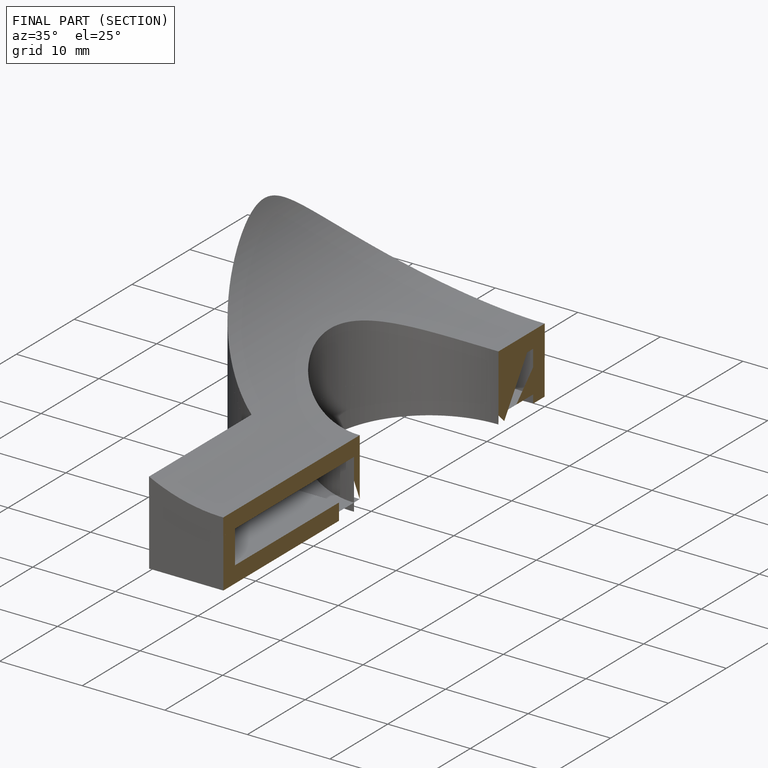
[diagram: finished part — half-section view (interior)]
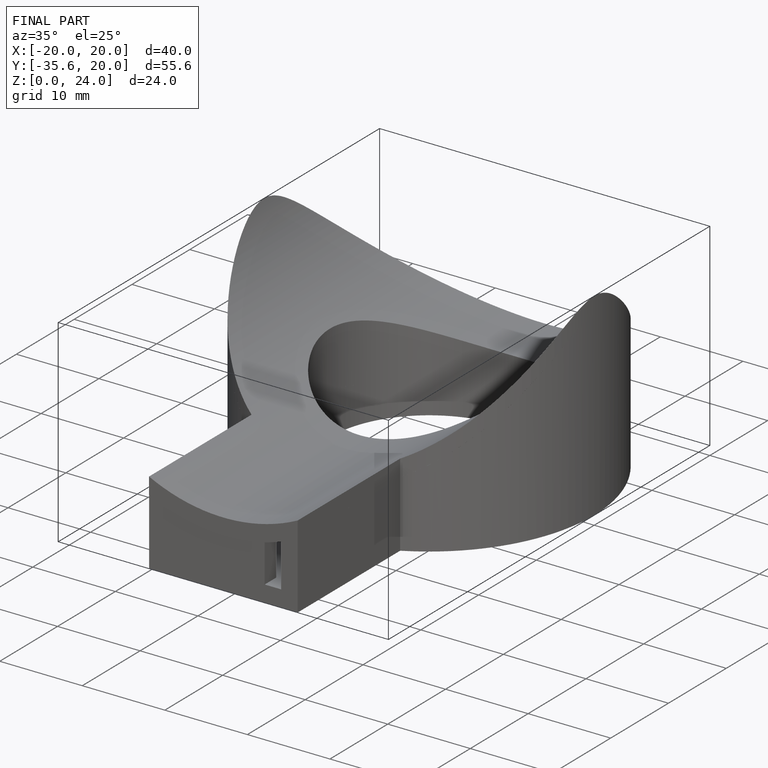
[diagram: finished part — iso view with bounding-box wireframe]
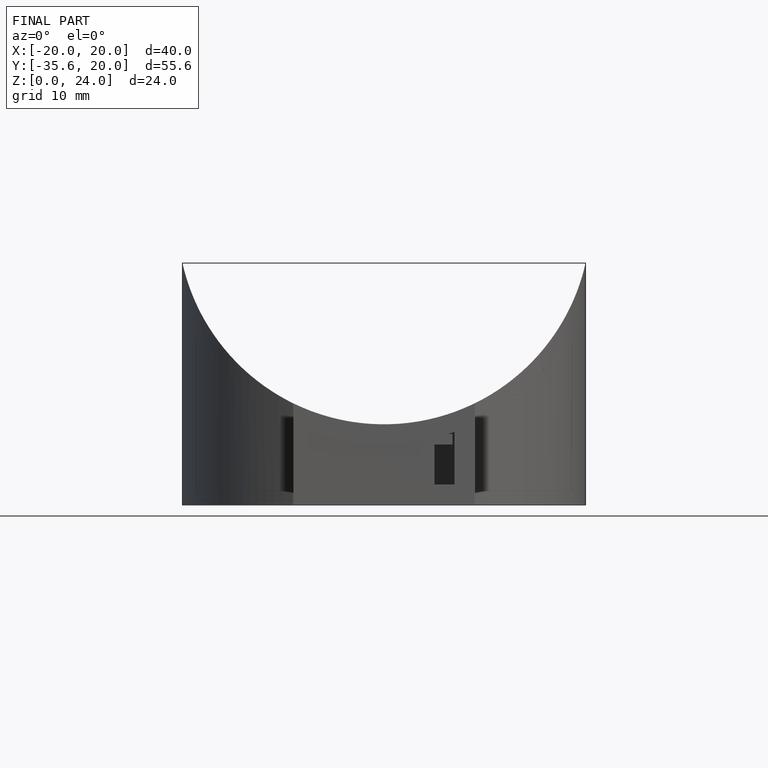
[diagram: finished part — front view with bounding-box wireframe]
